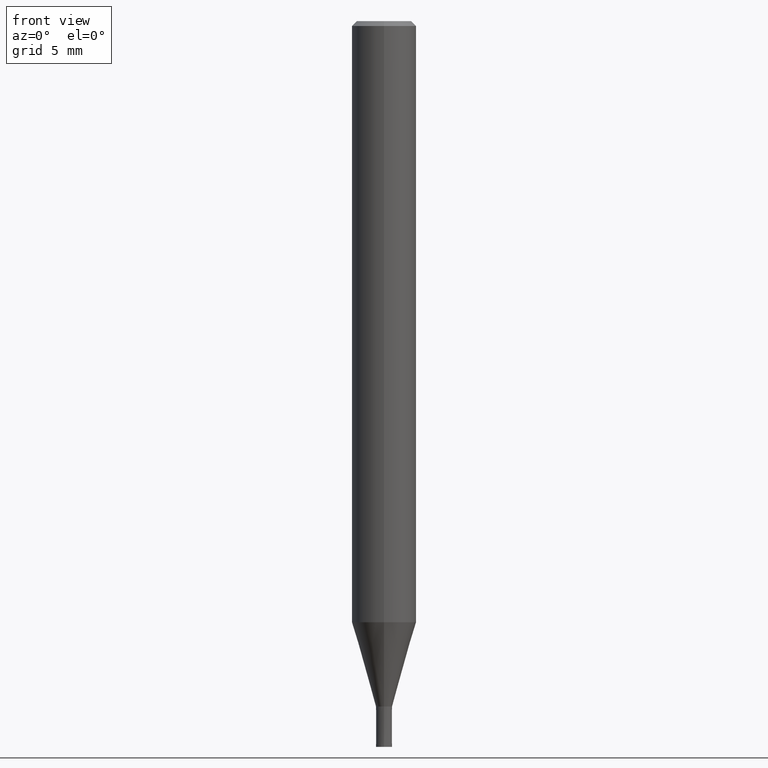
[diagram: clean part render]
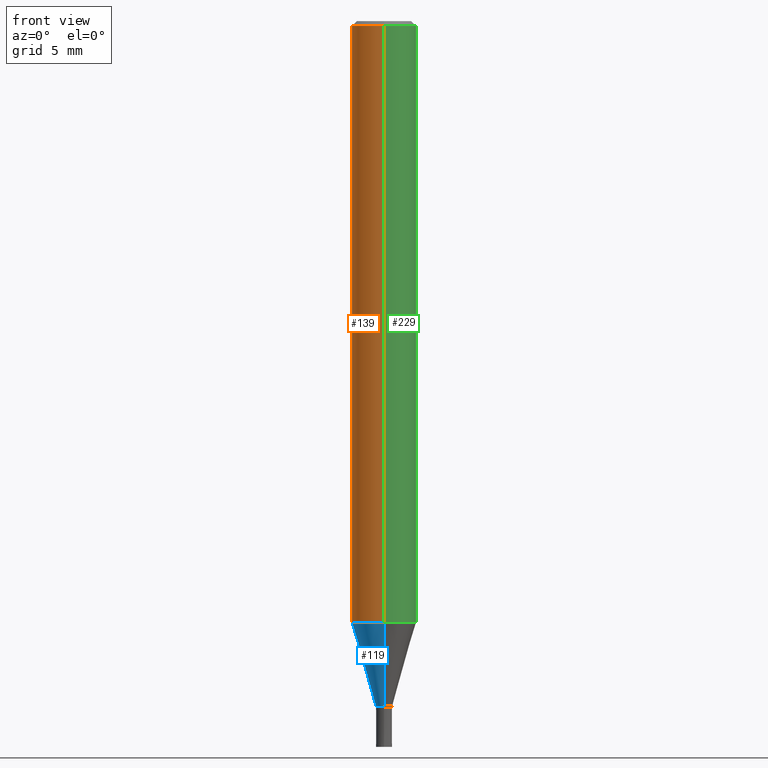
[diagram: same view with three faces highlighted in distinct colors, each labeled with its STEP entity id]
A machine part, front view with three faces highlighted in distinct colors.
Their STEP definitions:

[orange] entity #139 — the highlighted cylindrical surface (edge-blend (fillet) strip) has radius 2 mm, axis along (-0, -0, 1).
#121=VERTEX_POINT('',#295);
#131=VERTEX_POINT('',#306);
#139=ADVANCED_FACE('',(#314),#315,.T.);
#167=EDGE_CURVE('',#131,#245,#347,.T.);
#177=VERTEX_POINT('',#357);
#195=EDGE_CURVE('',#245,#121,#377,.T.);
#213=EDGE_CURVE('',#131,#177,#398,.T.);
#237=EDGE_CURVE('',#121,#177,#425,.T.);
#245=VERTEX_POINT('',#435);
#295=CARTESIAN_POINT('',(0.0,2.0,-0.299999999999997));
#306=CARTESIAN_POINT('',(2.44921270764475E-016,-2.0,-37.269));
#314=FACE_OUTER_BOUND('',#507,.T.);
#315=CYLINDRICAL_SURFACE('',#508,2.0);
#347=LINE('',#548,#549);
#357=CARTESIAN_POINT('',(0.0,2.0,-37.269));
#377=CIRCLE('',#590,2.0);
#398=CIRCLE('',#616,2.0);
#425=LINE('',#650,#651);
#435=CARTESIAN_POINT('',(2.44921270764475E-016,-2.0,-0.299999999999997));
#507=EDGE_LOOP('',(#733,#734,#735,#736));
#508=AXIS2_PLACEMENT_3D('',#737,#738,#739);
#548=CARTESIAN_POINT('',(2.44921270764475E-016,-2.0,-18.7845));
#549=VECTOR('',#773,1.0);
#590=AXIS2_PLACEMENT_3D('',#805,#806,#807);
#616=AXIS2_PLACEMENT_3D('',#831,#832,#833);
#650=CARTESIAN_POINT('',(-2.44921270764475E-016,2.0,-18.7845));
#651=VECTOR('',#862,1.0);
#733=ORIENTED_EDGE('',*,*,#237,.T.);
#734=ORIENTED_EDGE('',*,*,#213,.F.);
#735=ORIENTED_EDGE('',*,*,#167,.T.);
#736=ORIENTED_EDGE('',*,*,#195,.T.);
#737=CARTESIAN_POINT('',(0.0,0.0,-18.7845));
#738=DIRECTION('',(-0.0,-0.0,1.0));
#739=DIRECTION('',(0.0,1.0,0.0));
#773=DIRECTION('',(-0.0,-0.0,1.0));
#805=CARTESIAN_POINT('',(0.0,0.0,-0.299999999999997));
#806=DIRECTION('',(0.0,0.0,-1.0));
#807=DIRECTION('',(0.0,1.0,0.0));
#831=CARTESIAN_POINT('',(0.0,0.0,-37.269));
#832=DIRECTION('',(0.0,0.0,-1.0));
#833=DIRECTION('',(0.0,1.0,0.0));
#862=DIRECTION('',(0.0,0.0,-1.0));

[blue] entity #119 — the highlighted conical surface has half-angle 16 deg.
#119=ADVANCED_FACE('',(#292),#293,.T.);
#135=EDGE_CURVE('',#197,#157,#310,.T.);
#155=EDGE_CURVE('',#207,#163,#334,.T.);
#157=VERTEX_POINT('',#336);
#163=VERTEX_POINT('',#342);
#185=EDGE_CURVE('',#163,#157,#366,.T.);
#189=EDGE_CURVE('',#197,#207,#370,.T.);
#197=VERTEX_POINT('',#379);
#207=VERTEX_POINT('',#392);
#292=FACE_OUTER_BOUND('',#479,.T.);
#293=CONICAL_SURFACE('',#480,1.24995,0.279258842899557);
#310=CIRCLE('',#502,0.49995);
#334=CIRCLE('',#532,1.99995);
#336=CARTESIAN_POINT('',(0.0,0.49995,-42.5));
#342=CARTESIAN_POINT('',(0.0,1.99995,-37.269));
#366=LINE('',#574,#575);
#370=LINE('',#580,#581);
#379=CARTESIAN_POINT('',(6.12241946593498E-017,-0.49995,-42.5));
#392=CARTESIAN_POINT('',(2.44915147732706E-016,-1.99995,-37.269));
#479=EDGE_LOOP('',(#704,#705,#706,#707));
#480=AXIS2_PLACEMENT_3D('',#708,#709,#710);
#502=AXIS2_PLACEMENT_3D('',#726,#727,#728);
#532=AXIS2_PLACEMENT_3D('',#758,#759,#760);
#574=CARTESIAN_POINT('',(-1.53069671196028E-016,1.24995,-39.8845));
#575=VECTOR('',#792,1.0);
#580=CARTESIAN_POINT('',(1.53069671196028E-016,-1.24995,-39.8845));
#581=VECTOR('',#793,1.0);
#704=ORIENTED_EDGE('',*,*,#185,.T.);
#705=ORIENTED_EDGE('',*,*,#135,.F.);
#706=ORIENTED_EDGE('',*,*,#189,.T.);
#707=ORIENTED_EDGE('',*,*,#155,.T.);
#708=CARTESIAN_POINT('',(0.0,0.0,-39.8845));
#709=DIRECTION('',(-0.0,-0.0,1.0));
#710=DIRECTION('',(0.0,1.0,0.0));
#726=CARTESIAN_POINT('',(0.0,0.0,-42.5));
#727=DIRECTION('',(0.0,0.0,-1.0));
#728=DIRECTION('',(0.0,1.0,0.0));
#758=CARTESIAN_POINT('',(0.0,0.0,-37.269));
#759=DIRECTION('',(0.0,0.0,-1.0));
#760=DIRECTION('',(0.0,1.0,0.0));
#792=DIRECTION('',(3.37554511665357E-017,-0.275643279664314,-0.961259997282682));
#793=DIRECTION('',(3.37554511665357E-017,-0.275643279664314,0.961259997282682));

[green] entity #229 — the highlighted cylindrical surface (edge-blend (fillet) strip) has radius 2 mm, axis along (-0, -0, 1).
#121=VERTEX_POINT('',#295);
#131=VERTEX_POINT('',#306);
#167=EDGE_CURVE('',#131,#245,#347,.T.);
#177=VERTEX_POINT('',#357);
#229=ADVANCED_FACE('',(#416),#417,.T.);
#235=EDGE_CURVE('',#121,#245,#423,.T.);
#237=EDGE_CURVE('',#121,#177,#425,.T.);
#245=VERTEX_POINT('',#435);
#257=EDGE_CURVE('',#177,#131,#450,.T.);
#295=CARTESIAN_POINT('',(0.0,2.0,-0.299999999999997));
#306=CARTESIAN_POINT('',(2.44921270764475E-016,-2.0,-37.269));
#347=LINE('',#548,#549);
#357=CARTESIAN_POINT('',(0.0,2.0,-37.269));
#416=FACE_OUTER_BOUND('',#638,.T.);
#417=CYLINDRICAL_SURFACE('',#639,2.0);
#423=CIRCLE('',#647,2.0);
#425=LINE('',#650,#651);
#435=CARTESIAN_POINT('',(2.44921270764475E-016,-2.0,-0.299999999999997));
#450=CIRCLE('',#679,2.0);
#548=CARTESIAN_POINT('',(2.44921270764475E-016,-2.0,-18.7845));
#549=VECTOR('',#773,1.0);
#638=EDGE_LOOP('',(#849,#850,#851,#852));
#639=AXIS2_PLACEMENT_3D('',#853,#854,#855);
#647=AXIS2_PLACEMENT_3D('',#859,#860,#861);
#650=CARTESIAN_POINT('',(-2.44921270764475E-016,2.0,-18.7845));
#651=VECTOR('',#862,1.0);
#679=AXIS2_PLACEMENT_3D('',#900,#901,#902);
#773=DIRECTION('',(-0.0,-0.0,1.0));
#849=ORIENTED_EDGE('',*,*,#237,.F.);
#850=ORIENTED_EDGE('',*,*,#235,.T.);
#851=ORIENTED_EDGE('',*,*,#167,.F.);
#852=ORIENTED_EDGE('',*,*,#257,.F.);
#853=CARTESIAN_POINT('',(0.0,0.0,-18.7845));
#854=DIRECTION('',(-0.0,-0.0,1.0));
#855=DIRECTION('',(0.0,1.0,0.0));
#859=CARTESIAN_POINT('',(0.0,0.0,-0.299999999999997));
#860=DIRECTION('',(0.0,0.0,-1.0));
#861=DIRECTION('',(0.0,1.0,0.0));
#862=DIRECTION('',(0.0,0.0,-1.0));
#900=CARTESIAN_POINT('',(0.0,0.0,-37.269));
#901=DIRECTION('',(0.0,0.0,-1.0));
#902=DIRECTION('',(0.0,1.0,0.0));